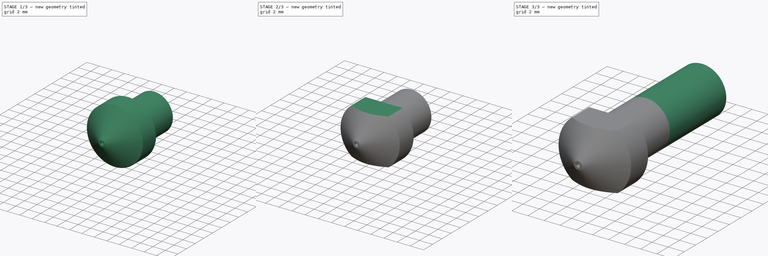
[diagram: build sequence overview — one tinted view per stage of 3, left to right]
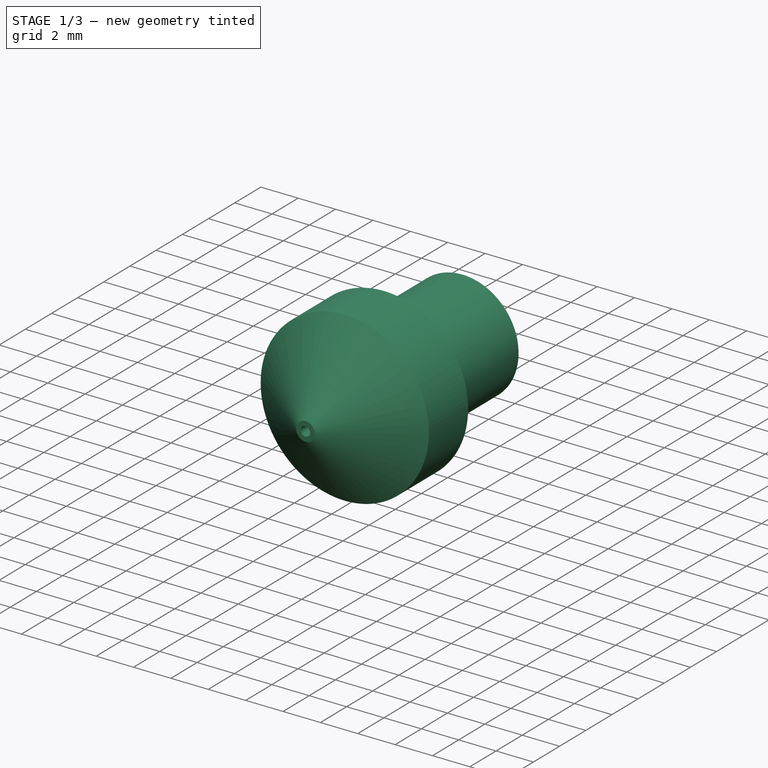
[diagram: stage 1 of 3 — iso view after this stage's code; geometry added in this stage tinted green]
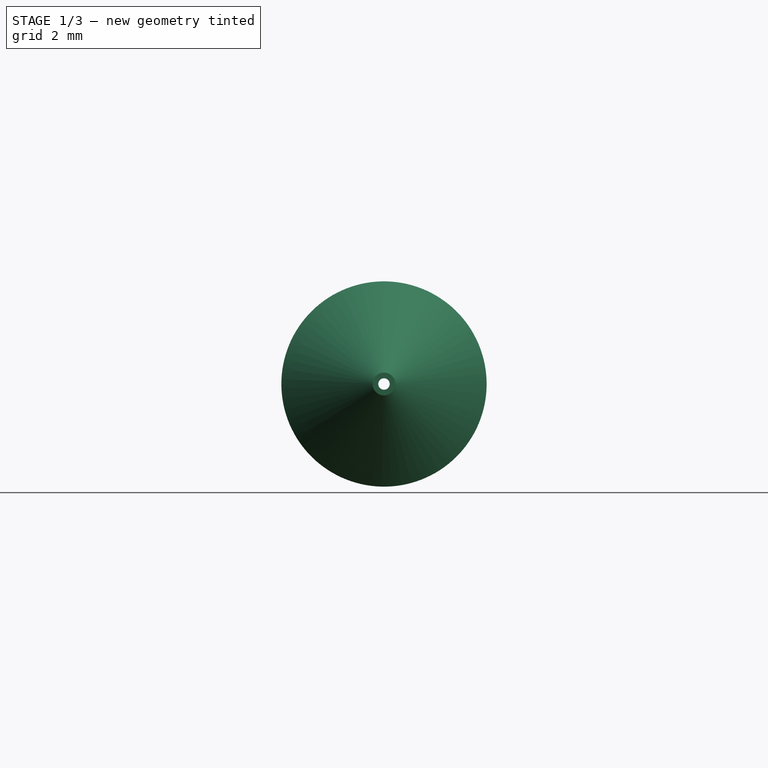
[diagram: stage 1 of 3 — front view after this stage's code; geometry added in this stage tinted green]
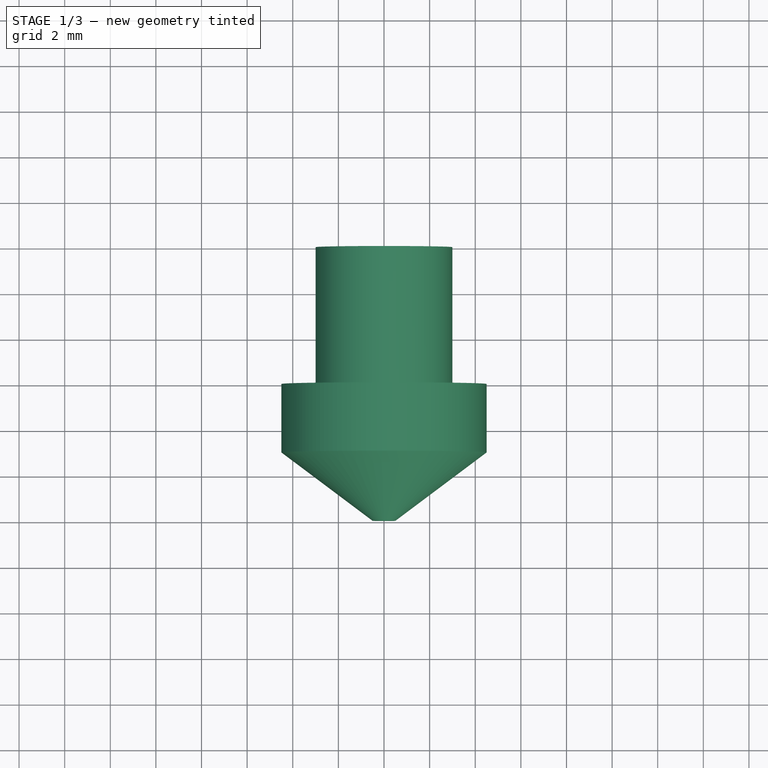
[diagram: stage 1 of 3 — top view after this stage's code; geometry added in this stage tinted green]
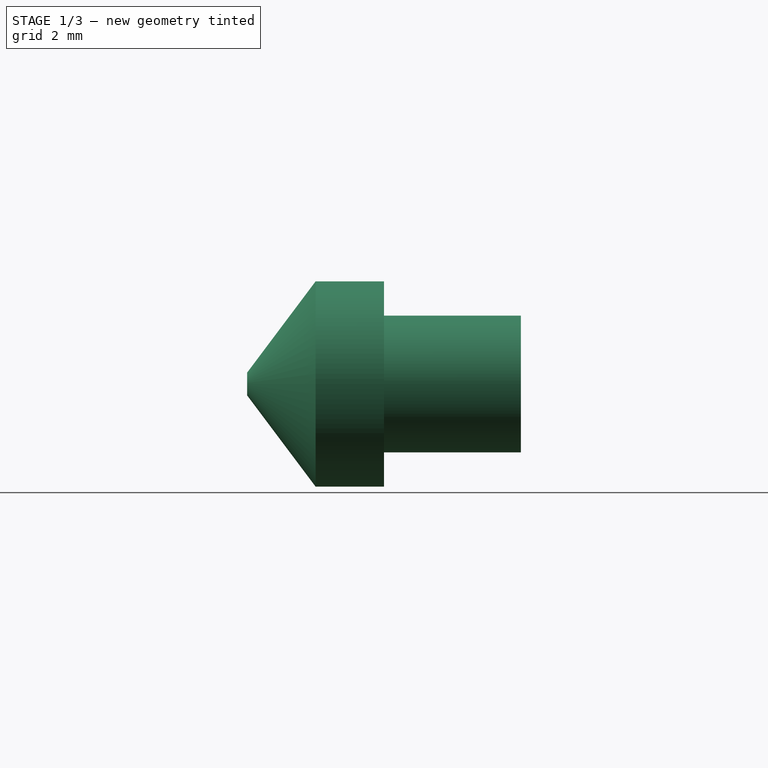
[diagram: stage 1 of 3 — right view after this stage's code; geometry added in this stage tinted green]
FCSTD DOCUMENT  (FreeCAD 0.15R4651 (Git))
Label: extended_hex_nozzle_0.1
License: All rights reserved
LicenseURL: http://en.wikipedia.org/wiki/All_rights_reserved
objects: Sketcher::SketchObject×4, PartDesign::Pocket×2, PartDesign::Revolution×1, PartDesign::Pad×1, PartDesign::Fillet×1
note: 13 computed .brp shape members not serialized (recipe doc carries the construction recipe); baked Part::Feature solids carry a one-line shape summary decoded from their .brp

FEATURE [Sketcher::SketchObject] Sketch
  sketch-geometry (9):
    g0: LineSegment StartX=0 StartY=0 StartZ=0 EndX=0.5 EndY=0 EndZ=0
    g1: LineSegment StartX=0.5 StartY=0 StartZ=0 EndX=4.5 EndY=3 EndZ=0
    g2: LineSegment StartX=4.5 StartY=3 StartZ=0 EndX=4.5 EndY=6 EndZ=0
    g3: LineSegment StartX=4.5 StartY=6 StartZ=0 EndX=3 EndY=6 EndZ=0
    g4: LineSegment StartX=3 StartY=6 StartZ=0 EndX=3 EndY=12 EndZ=0
    g5: LineSegment StartX=3 StartY=12 StartZ=0 EndX=1.6 EndY=12 EndZ=0
    g6: LineSegment StartX=1.6 StartY=12 StartZ=0 EndX=1.6 EndY=2.84256 EndZ=0
    g7: LineSegment StartX=1.6 StartY=2.84256 StartZ=0 EndX=0 EndY=1.5 EndZ=0
    g8: LineSegment StartX=0 StartY=1.5 StartZ=0 EndX=0 EndY=0 EndZ=0
  constraints (26):
    c: Coincident(g-1,g0)
    c: PointOnObject(g0,g-1)
    c: Coincident(g0,g1)
    c: Coincident(g1,g2)
    c: Vertical(g2)
    c: Coincident(g2,g3)
    c: Horizontal(g3)
    c: Coincident(g3,g4)
    c: Vertical(g4)
    c: Coincident(g4,g5)
    c: Horizontal(g5)
    c: Coincident(g5,g6)
    c: Vertical(g6)
    c: Coincident(g6,g7)
    c: Coincident(g7,g8)
    c: Coincident(g8,g0)
    c: Vertical(g8)
    c: DistanceY(g0,g1) = 3
    c: DistanceY(g2,g1) = -3
    c: DistanceY(g-1,g4) = 12
    c: Angle(g0,g7) = 0.698132
    c: DistanceY(g-1,g7) = 1.5
    c: DistanceX(g0) = 0.5
    c: DistanceX(g-1,g1) = 4.5
    c: DistanceX(g-1,g4) = 3
    c: DistanceX(g-1,g5) = 1.6
FEATURE [PartDesign::Revolution] Revolution
  Angle = 360
  Axis = (0,1,0)
  Base = (0,0,0)
  ReferenceAxis = -> Sketch [V_Axis]
  Reversed = true
  Sketch = -> Sketch
FEATURE [Sketcher::SketchObject] Sketch001
  Placement = pos=(0,0,0) rot=(1,0,0;1.5708rad)
  Support = -> Revolution [Face1]
  sketch-geometry (1):
    g0: Circle CenterX=0 CenterY=0 CenterZ=0 NormalX=0 NormalY=0 NormalZ=1 Radius=0.25
  constraints (2):
    c: Coincident(g0,g-1)
    c: Radius(g0) = 0.25
FEATURE [PartDesign::Pocket] Pocket
  Length = 5
  Sketch = -> Sketch001
  Type = 0
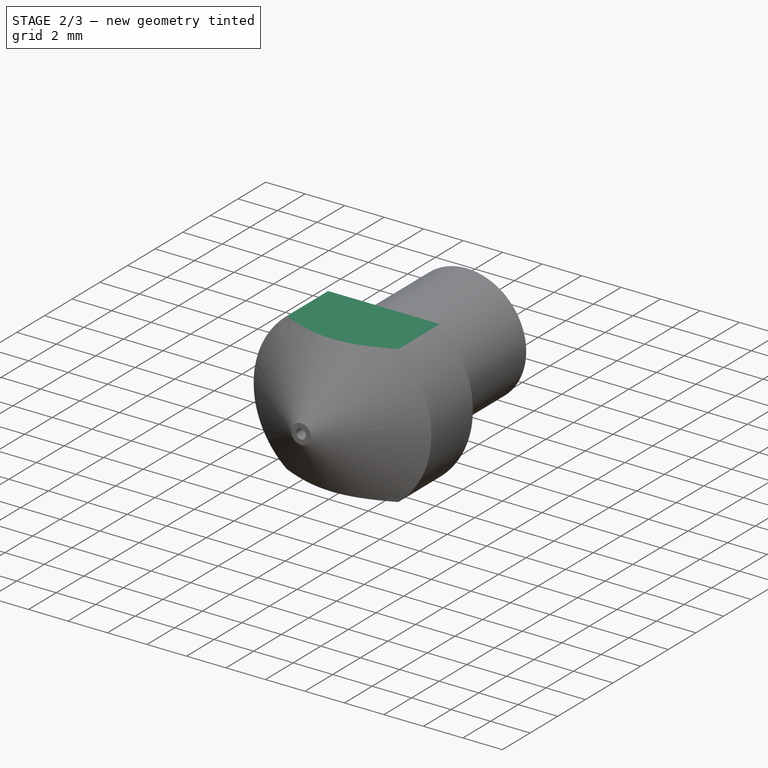
[diagram: stage 2 of 3 — iso view after this stage's code; geometry added in this stage tinted green]
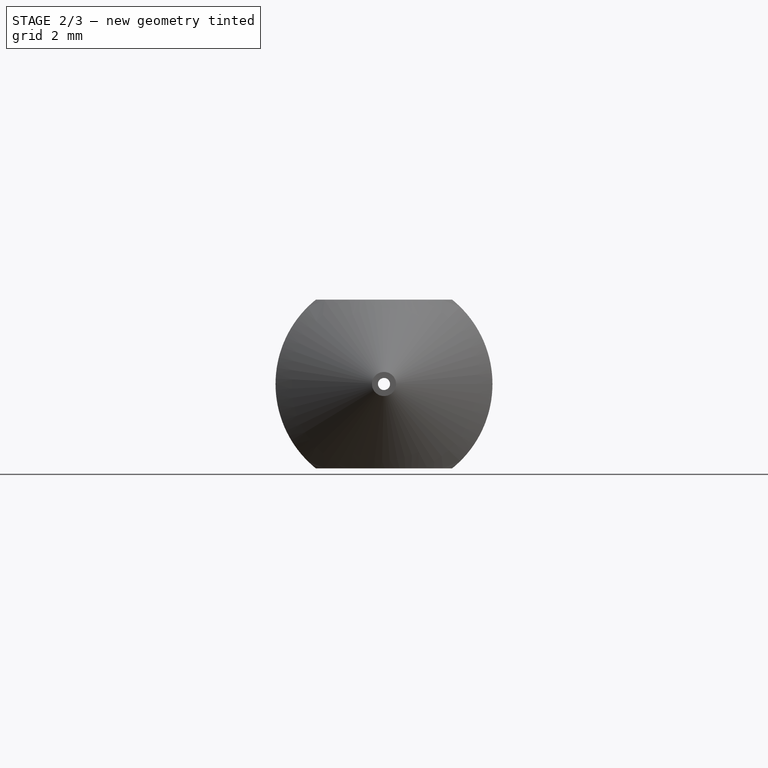
[diagram: stage 2 of 3 — front view after this stage's code; geometry added in this stage tinted green]
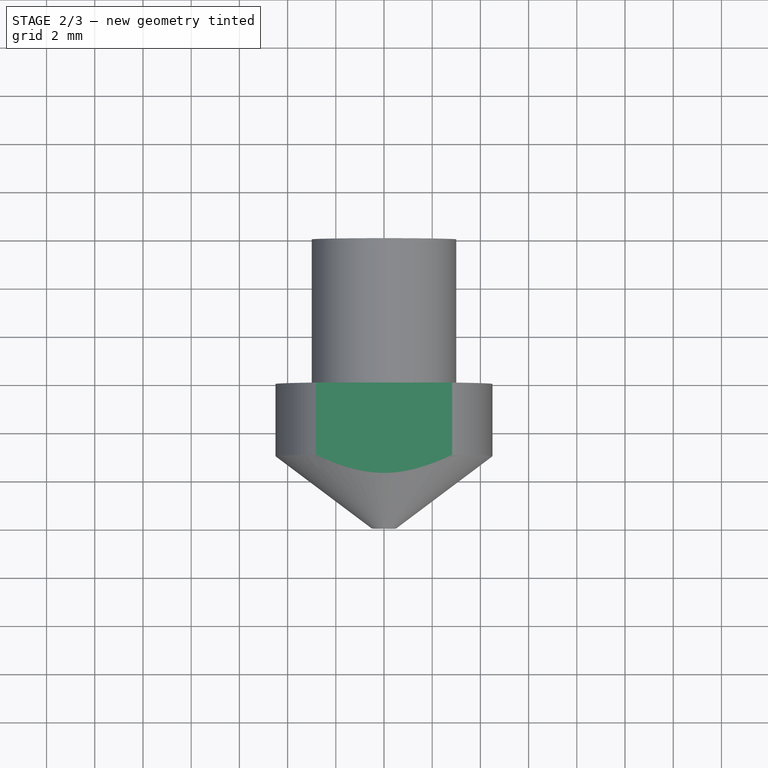
[diagram: stage 2 of 3 — top view after this stage's code; geometry added in this stage tinted green]
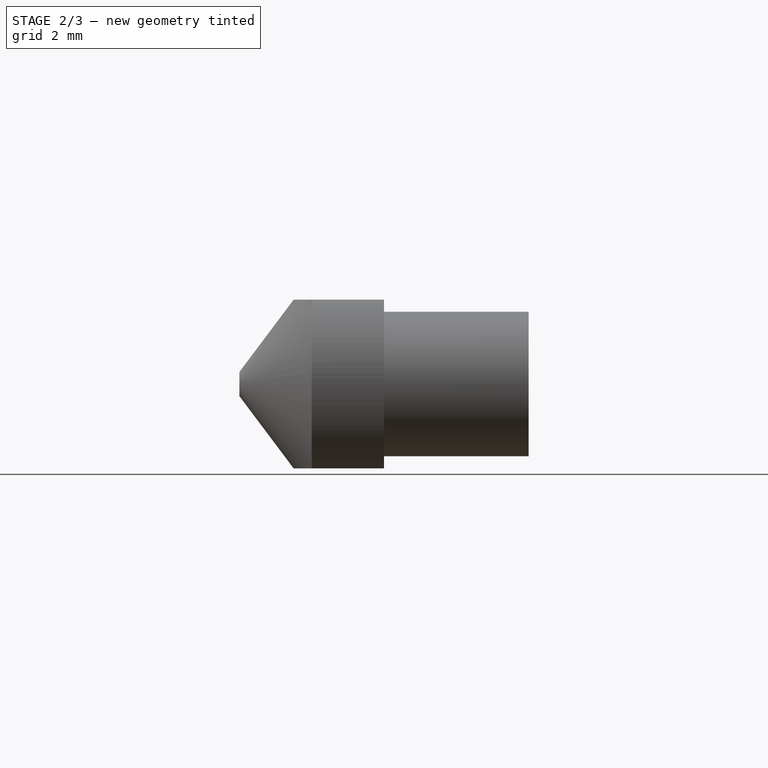
[diagram: stage 2 of 3 — right view after this stage's code; geometry added in this stage tinted green]
FEATURE [Sketcher::SketchObject] Sketch002
  Placement = pos=(0,0,0) rot=(1,0,0;1.5708rad)
  Support = -> Pocket [Face1]
  sketch-geometry (8):
    g0: LineSegment StartX=-5.41894 StartY=5.5961 StartZ=0 EndX=4.58106 EndY=5.5961 EndZ=0
    g1: LineSegment StartX=4.58106 StartY=5.5961 StartZ=0 EndX=4.58106 EndY=3.5 EndZ=0
    g2: LineSegment StartX=4.58106 StartY=3.5 StartZ=0 EndX=-5.41894 EndY=3.5 EndZ=0
    g3: LineSegment StartX=-5.41894 StartY=3.5 StartZ=0 EndX=-5.41894 EndY=5.5961 EndZ=0
    g4: LineSegment StartX=-5.45643 StartY=-5.80451 StartZ=0 EndX=4.54357 EndY=-5.80451 EndZ=0
    g5: LineSegment StartX=4.54357 StartY=-5.80451 StartZ=0 EndX=4.54357 EndY=-3.5 EndZ=0
    g6: LineSegment StartX=4.54357 StartY=-3.5 StartZ=0 EndX=-5.45643 EndY=-3.5 EndZ=0
    g7: LineSegment StartX=-5.45643 StartY=-3.5 StartZ=0 EndX=-5.45643 EndY=-5.80451 EndZ=0
  constraints (24):
    c: Coincident(g0,g1)
    c: Coincident(g1,g2)
    c: Coincident(g2,g3)
    c: Coincident(g3,g0)
    c: Horizontal(g0)
    c: Horizontal(g2)
    c: Vertical(g1)
    c: Vertical(g3)
    c: Coincident(g4,g5)
    c: Coincident(g5,g6)
    c: Coincident(g6,g7)
    c: Coincident(g7,g4)
    c: Horizontal(g4)
    c: Horizontal(g6)
    c: Vertical(g5)
    c: Vertical(g7)
    c: DistanceY(g6,g2) = 7
    c: DistanceY(g-1,g2) = 3.5
    c: DistanceX(g4) = 4.54357
    c: DistanceY(g4) = -5.80451
    c: DistanceX(g0) = -5.41894
    c: DistanceY(g0) = 5.5961
    c: Equal(g0,g4)
    c: DistanceX(g0) = 10
FEATURE [PartDesign::Pocket] Pocket001
  Length = 5
  Sketch = -> Sketch002
  Type = 1
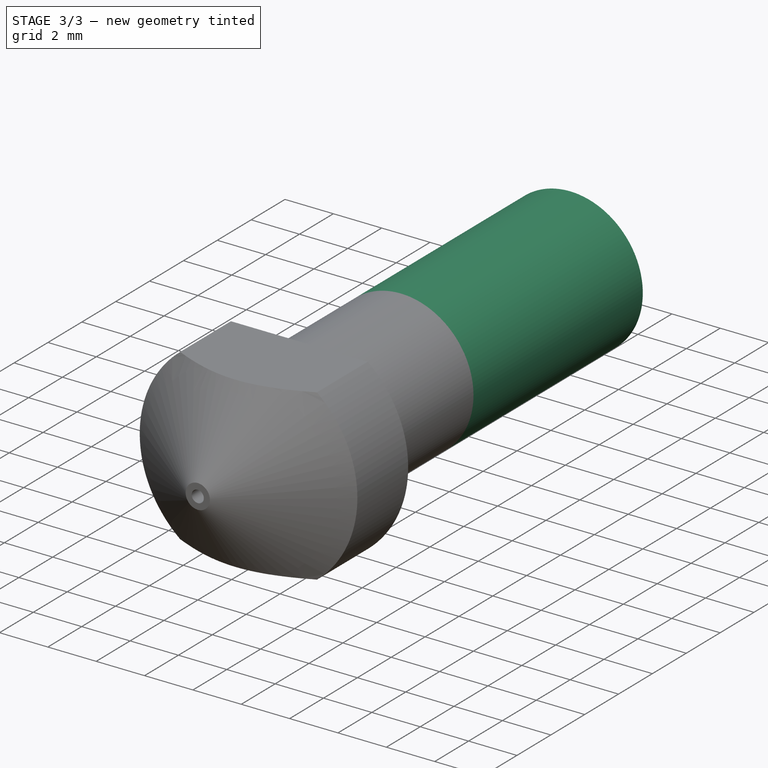
[diagram: stage 3 of 3 — iso view after this stage's code; geometry added in this stage tinted green]
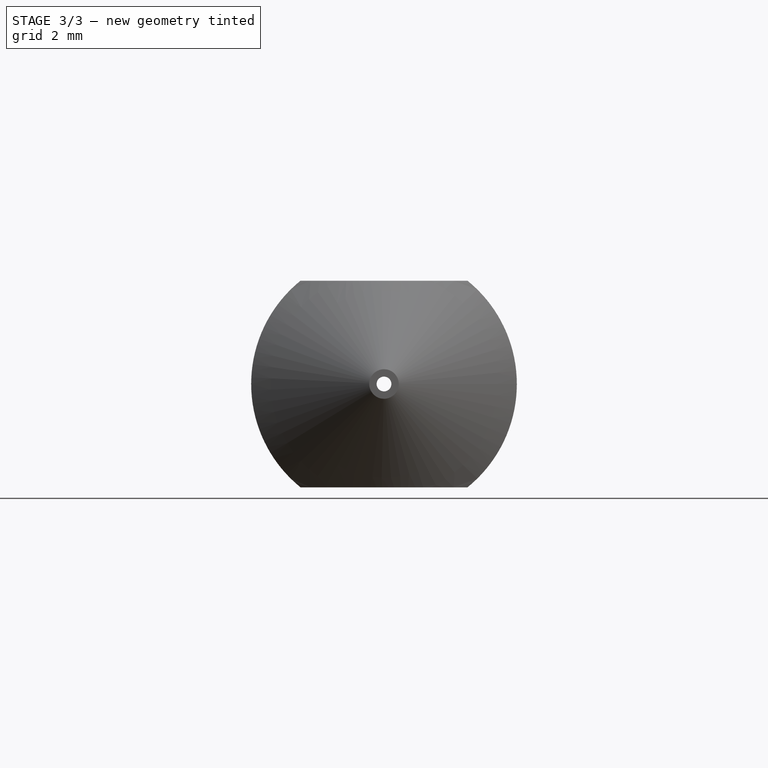
[diagram: stage 3 of 3 — front view after this stage's code; geometry added in this stage tinted green]
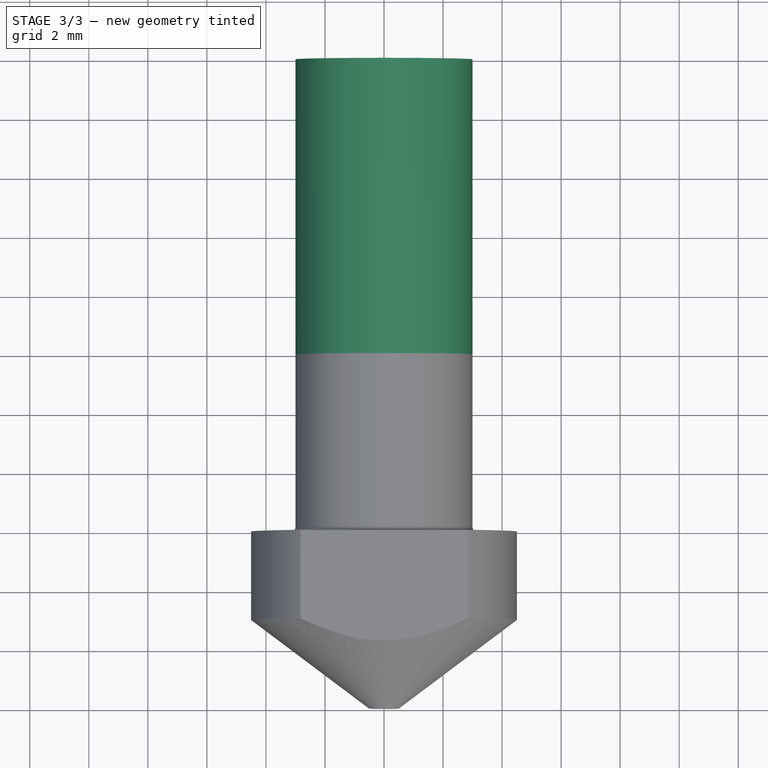
[diagram: stage 3 of 3 — top view after this stage's code; geometry added in this stage tinted green]
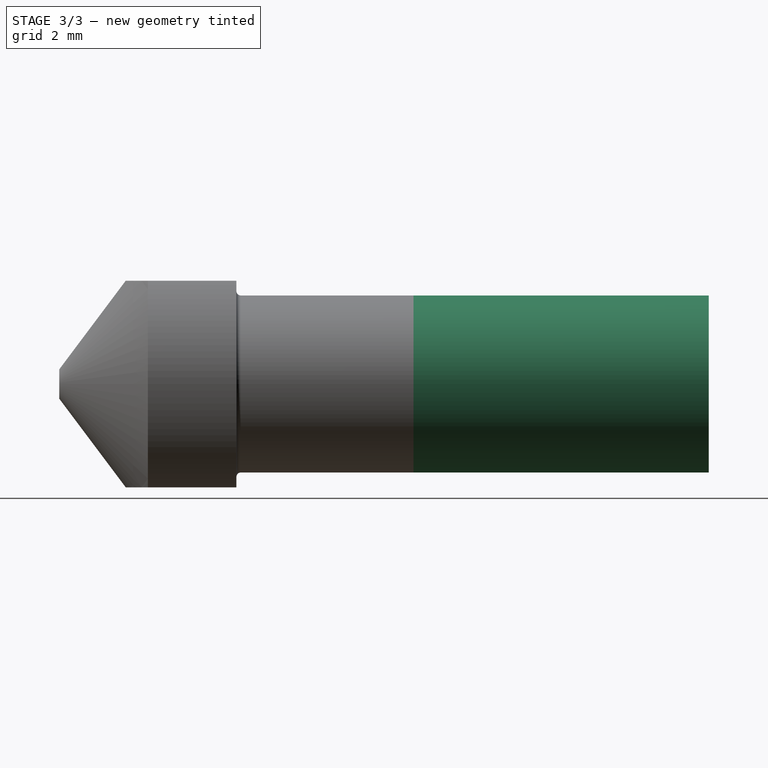
[diagram: stage 3 of 3 — right view after this stage's code; geometry added in this stage tinted green]
FEATURE [Sketcher::SketchObject] Sketch003
  ExternalGeometry = -> [Pocket001]
  Placement = pos=(0,12,0) rot=(0,0.707107,0.707107;3.14159rad)
  Support = -> Pocket001 [Face13]
  sketch-geometry (2):
    g0: Circle CenterX=0 CenterY=0 CenterZ=0 NormalX=0 NormalY=0 NormalZ=1 Radius=3
    g1: Circle CenterX=0 CenterY=0 CenterZ=0 NormalX=0 NormalY=0 NormalZ=1 Radius=1.6
  constraints (4):
    c: Coincident(g0,g-1)
    c: Coincident(g1,g-1)
    c: Equal(g1,g-4)
    c: Equal(g0,g-3)
FEATURE [PartDesign::Pad] Pad
  Length = 10
  Length2 = 100
  Sketch = -> Sketch003
  Type = 0
FEATURE [PartDesign::Fillet] Fillet
  Base = -> Pad [Edge23]
  Radius = 0.15
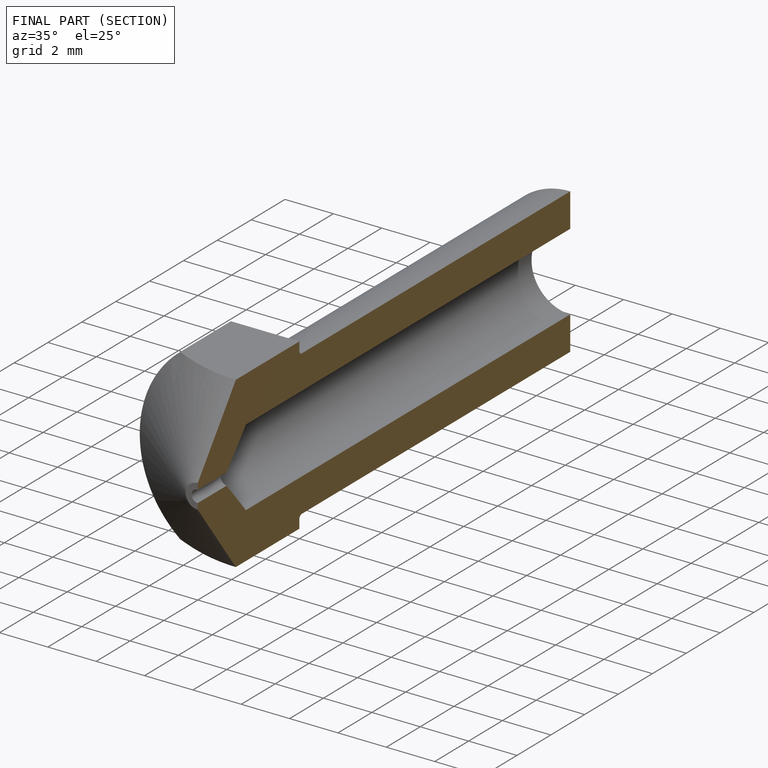
[diagram: finished part — half-section view (interior)]
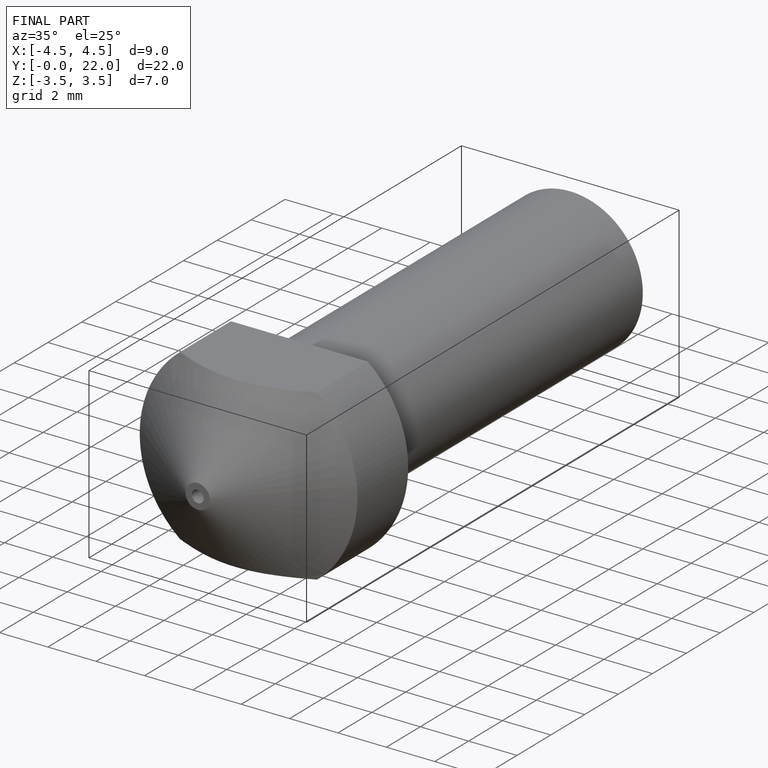
[diagram: finished part — iso view with bounding-box wireframe]
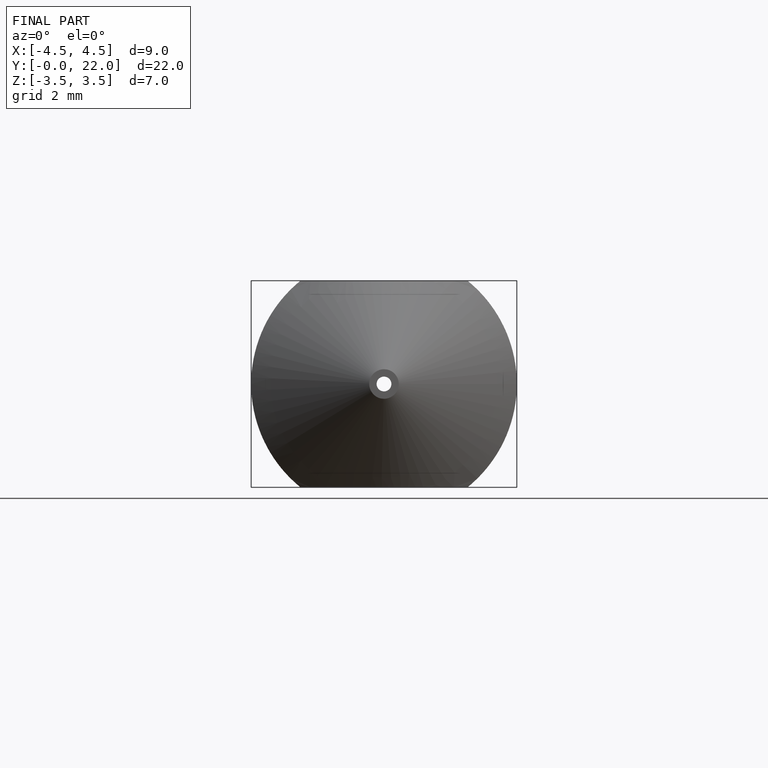
[diagram: finished part — front view with bounding-box wireframe]
